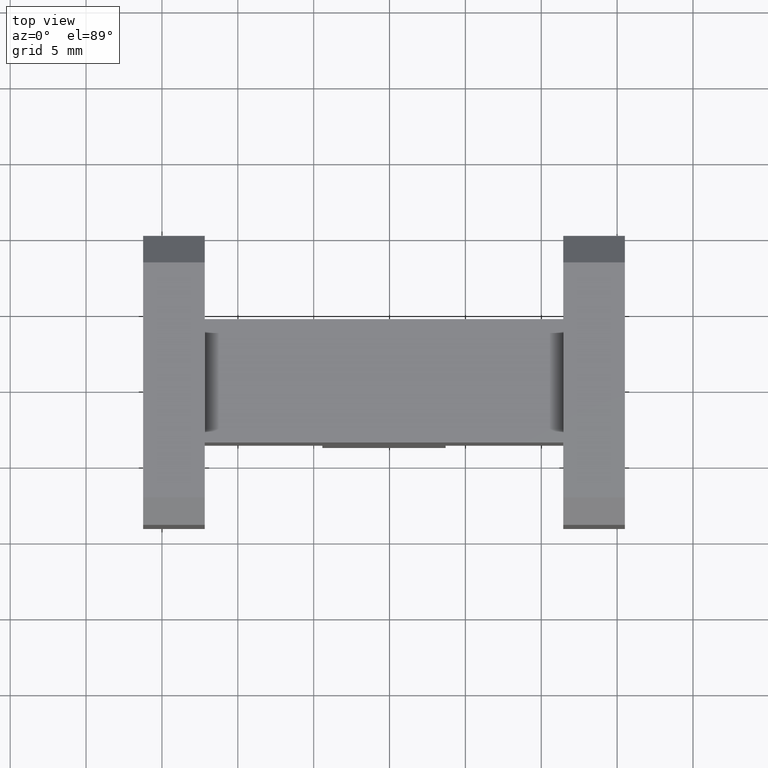
[diagram: clean part render]
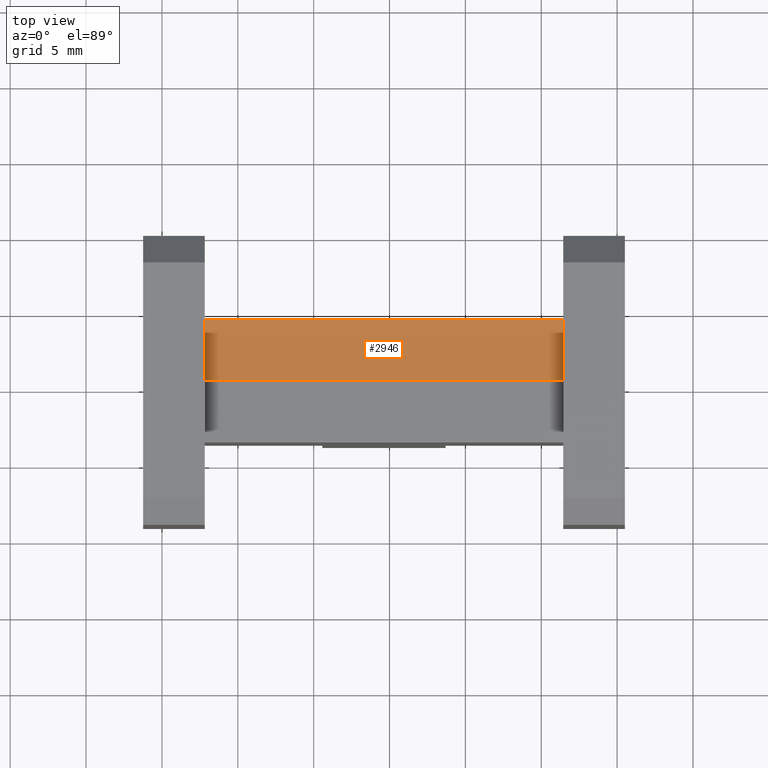
[diagram: same view with one face highlighted and labeled with its STEP entity id]
A machine part, top view. The second image highlights one B-rep face of the part: STEP entity #2946.
In plain terms, the highlighted planar face has unit normal (0, 0, -1).
Its self-contained STEP definition (entity closure, byte-faithful):
#749 = CARTESIAN_POINT ( 'NONE',  ( 0.4506356526792963400, 0.3673681026864124000, 0.3654665074677268000 ) ) ;
#1031 = EDGE_CURVE ( 'NONE', #7221, #3270, #10944, .T. ) ;
#2265 = FACE_OUTER_BOUND ( 'NONE', #10650, .T. ) ;
#2396 = CARTESIAN_POINT ( 'NONE',  ( -0.01436434732070389000, 0.2073681026864123400, 0.3654665074677268000 ) ) ;
#2650 = VECTOR ( 'NONE', #9995, 39.37007874015748100 ) ;
#2916 = CARTESIAN_POINT ( 'NONE',  ( -0.01436434732070389000, 0.2073287326076722300, 0.3654665074677268000 ) ) ;
#2946 = ADVANCED_FACE ( 'NONE', ( #2265 ), #8716, .F. ) ;
#3270 = VERTEX_POINT ( 'NONE', #749 ) ;
#3276 = CARTESIAN_POINT ( 'NONE',  ( 0.4506356526792963400, 0.3673681026864124000, 0.3654665074677268000 ) ) ;
#3988 = EDGE_CURVE ( 'NONE', #6594, #5768, #5655, .T. ) ;
#4017 = CARTESIAN_POINT ( 'NONE',  ( -0.4793643473207041000, 0.3673681026864124000, 0.3654665074677268000 ) ) ;
#4125 = ORIENTED_EDGE ( 'NONE', *, *, #3988, .T. ) ;
#4237 = ORIENTED_EDGE ( 'NONE', *, *, #6698, .F. ) ;
#4605 = ORIENTED_EDGE ( 'NONE', *, *, #1031, .F. ) ;
#4815 = VECTOR ( 'NONE', #8973, 39.37007874015748100 ) ;
#4918 = ORIENTED_EDGE ( 'NONE', *, *, #7303, .T. ) ;
#4922 = DIRECTION ( 'NONE',  ( -1.110223024625156300E-016, 1.000000000000000000, 0.0000000000000000000 ) ) ;
#5300 = AXIS2_PLACEMENT_3D ( 'NONE', #2916, #9657, #6157 ) ;
#5356 = CARTESIAN_POINT ( 'NONE',  ( -0.4793643473207041000, 0.2073681026864123400, 0.3654665074677268000 ) ) ;
#5655 = LINE ( 'NONE', #2396, #9247 ) ;
#5768 = VERTEX_POINT ( 'NONE', #7249 ) ;
#6082 = CARTESIAN_POINT ( 'NONE',  ( 0.4506356526792961200, 0.2073287326076722300, 0.3654665074677268000 ) ) ;
#6157 = DIRECTION ( 'NONE',  ( -1.000000000000000000, 0.0000000000000000000, 0.0000000000000000000 ) ) ;
#6594 = VERTEX_POINT ( 'NONE', #5356 ) ;
#6698 = EDGE_CURVE ( 'NONE', #6594, #7221, #8645, .T. ) ;
#7221 = VERTEX_POINT ( 'NONE', #4017 ) ;
#7249 = CARTESIAN_POINT ( 'NONE',  ( 0.4506356526792961200, 0.2073681026864123400, 0.3654665074677268000 ) ) ;
#7260 = DIRECTION ( 'NONE',  ( 1.000000000000000000, 0.0000000000000000000, 0.0000000000000000000 ) ) ;
#7303 = EDGE_CURVE ( 'NONE', #5768, #3270, #8059, .T. ) ;
#8059 = LINE ( 'NONE', #6082, #4815 ) ;
#8645 = LINE ( 'NONE', #8770, #12072 ) ;
#8716 = PLANE ( 'NONE',  #5300 ) ;
#8770 = CARTESIAN_POINT ( 'NONE',  ( -0.4793643473207041000, 0.2073287326076722300, 0.3654665074677268000 ) ) ;
#8973 = DIRECTION ( 'NONE',  ( -1.110223024625156300E-016, 1.000000000000000000, 0.0000000000000000000 ) ) ;
#9247 = VECTOR ( 'NONE', #7260, 39.37007874015748100 ) ;
#9657 = DIRECTION ( 'NONE',  ( 0.0000000000000000000, 0.0000000000000000000, -1.000000000000000000 ) ) ;
#9995 = DIRECTION ( 'NONE',  ( 1.000000000000000000, -0.0000000000000000000, 0.0000000000000000000 ) ) ;
#10650 = EDGE_LOOP ( 'NONE', ( #4605, #4237, #4125, #4918 ) ) ;
#10944 = LINE ( 'NONE', #3276, #2650 ) ;
#12072 = VECTOR ( 'NONE', #4922, 39.37007874015748100 ) ;